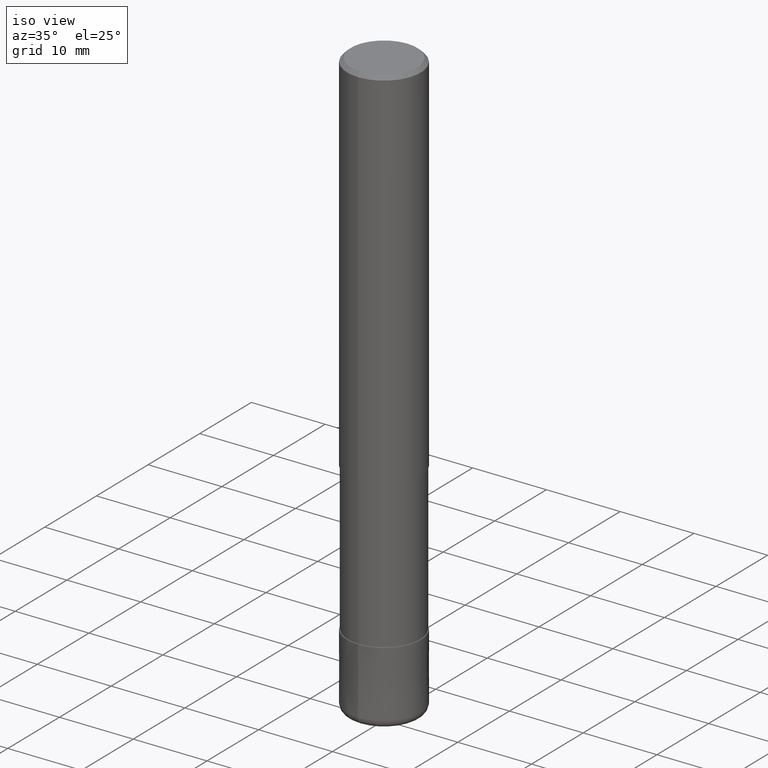
[diagram: clean part render]
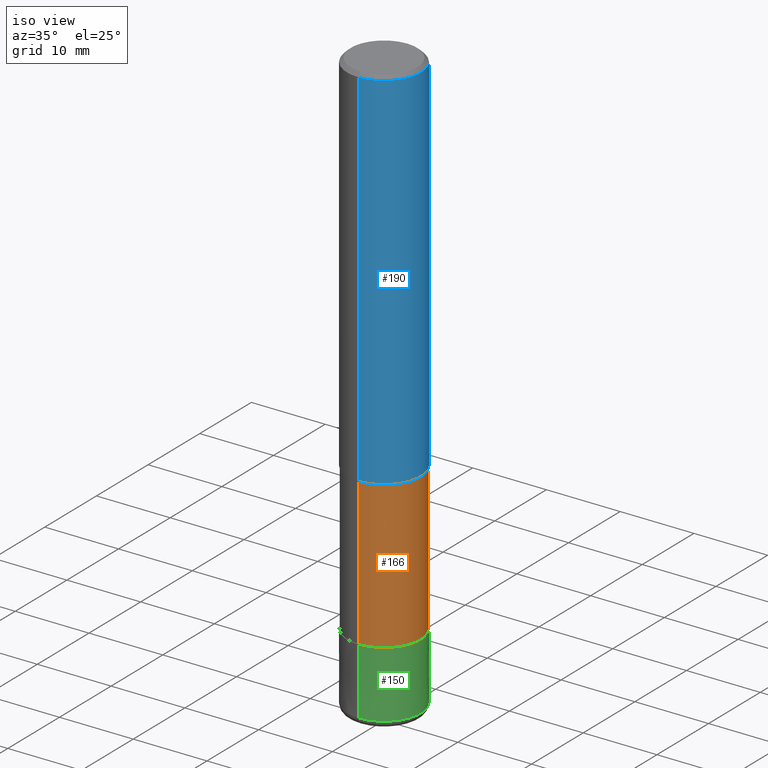
[diagram: same view with three faces highlighted in distinct colors, each labeled with its STEP entity id]
A machine part, iso view with three faces highlighted in distinct colors.
Their STEP definitions:

[orange] entity #166 — the highlighted cylindrical surface (partial cylindrical patch) has radius 4.91 mm, axis along (-0, -0, 1).
#96=EDGE_CURVE('',#136,#180,#233,.T.);
#128=EDGE_CURVE('',#136,#178,#268,.T.);
#130=EDGE_CURVE('',#180,#202,#270,.T.);
#136=VERTEX_POINT('',#276);
#160=EDGE_CURVE('',#202,#178,#307,.T.);
#166=ADVANCED_FACE('',(#314),#315,.T.);
#178=VERTEX_POINT('',#328);
#180=VERTEX_POINT('',#330);
#202=VERTEX_POINT('',#355);
#233=LINE('',#379,#380);
#268=CIRCLE('',#425,4.90995);
#270=CIRCLE('',#428,4.90995);
#276=CARTESIAN_POINT('',(0.0,4.90995,-50.0));
#307=LINE('',#473,#474);
#314=FACE_OUTER_BOUND('',#481,.T.);
#315=CYLINDRICAL_SURFACE('',#482,4.90995);
#328=CARTESIAN_POINT('',(6.01275596695018E-016,-4.90995,-50.0));
#330=CARTESIAN_POINT('',(0.0,4.90995,-70.0));
#355=CARTESIAN_POINT('',(6.01275596695018E-016,-4.90995,-70.0));
#379=CARTESIAN_POINT('',(-6.01275596695018E-016,4.90995,-60.0));
#380=VECTOR('',#544,1.0);
#425=AXIS2_PLACEMENT_3D('',#588,#589,#590);
#428=AXIS2_PLACEMENT_3D('',#591,#592,#593);
#473=CARTESIAN_POINT('',(6.01275596695018E-016,-4.90995,-60.0));
#474=VECTOR('',#651,1.0);
#481=EDGE_LOOP('',(#661,#662,#663,#664));
#482=AXIS2_PLACEMENT_3D('',#665,#666,#667);
#544=DIRECTION('',(0.0,0.0,-1.0));
#588=CARTESIAN_POINT('',(0.0,0.0,-50.0));
#589=DIRECTION('',(0.0,0.0,-1.0));
#590=DIRECTION('',(0.0,1.0,0.0));
#591=CARTESIAN_POINT('',(0.0,0.0,-70.0));
#592=DIRECTION('',(0.0,0.0,-1.0));
#593=DIRECTION('',(0.0,1.0,0.0));
#651=DIRECTION('',(-0.0,-0.0,1.0));
#661=ORIENTED_EDGE('',*,*,#96,.F.);
#662=ORIENTED_EDGE('',*,*,#128,.T.);
#663=ORIENTED_EDGE('',*,*,#160,.F.);
#664=ORIENTED_EDGE('',*,*,#130,.F.);
#665=CARTESIAN_POINT('',(0.0,0.0,-60.0));
#666=DIRECTION('',(-0.0,-0.0,1.0));
#667=DIRECTION('',(0.0,1.0,0.0));

[blue] entity #190 — the highlighted cylindrical surface (partial cylindrical patch) has radius 5 mm, axis along (-0, -0, 1).
#102=EDGE_CURVE('',#158,#208,#239,.T.);
#158=VERTEX_POINT('',#305);
#164=VERTEX_POINT('',#312);
#168=EDGE_CURVE('',#198,#164,#317,.T.);
#172=EDGE_CURVE('',#208,#198,#322,.T.);
#190=ADVANCED_FACE('',(#341),#342,.T.);
#192=EDGE_CURVE('',#158,#164,#344,.T.);
#198=VERTEX_POINT('',#350);
#208=VERTEX_POINT('',#361);
#239=LINE('',#387,#388);
#305=CARTESIAN_POINT('',(0.0,5.0,-0.5));
#312=CARTESIAN_POINT('',(6.12303176911189E-016,-5.0,-0.5));
#317=LINE('',#485,#486);
#322=CIRCLE('',#492,5.0);
#341=FACE_OUTER_BOUND('',#512,.T.);
#342=CYLINDRICAL_SURFACE('',#513,5.0);
#344=CIRCLE('',#516,5.0);
#350=CARTESIAN_POINT('',(6.12303176911189E-016,-5.0,-50.0));
#361=CARTESIAN_POINT('',(0.0,5.0,-50.0));
#387=CARTESIAN_POINT('',(-6.12303176911189E-016,5.0,-25.25));
#388=VECTOR('',#549,1.0);
#485=CARTESIAN_POINT('',(6.12303176911189E-016,-5.0,-25.25));
#486=VECTOR('',#668,1.0);
#492=AXIS2_PLACEMENT_3D('',#675,#676,#677);
#512=EDGE_LOOP('',(#688,#689,#690,#691));
#513=AXIS2_PLACEMENT_3D('',#692,#693,#694);
#516=AXIS2_PLACEMENT_3D('',#695,#696,#697);
#549=DIRECTION('',(0.0,0.0,-1.0));
#668=DIRECTION('',(-0.0,-0.0,1.0));
#675=CARTESIAN_POINT('',(0.0,0.0,-50.0));
#676=DIRECTION('',(0.0,0.0,-1.0));
#677=DIRECTION('',(0.0,1.0,0.0));
#688=ORIENTED_EDGE('',*,*,#102,.F.);
#689=ORIENTED_EDGE('',*,*,#192,.T.);
#690=ORIENTED_EDGE('',*,*,#168,.F.);
#691=ORIENTED_EDGE('',*,*,#172,.F.);
#692=CARTESIAN_POINT('',(0.0,0.0,-25.25));
#693=DIRECTION('',(-0.0,-0.0,1.0));
#694=DIRECTION('',(0.0,1.0,0.0));
#695=CARTESIAN_POINT('',(0.0,0.0,-0.5));
#696=DIRECTION('',(0.0,0.0,-1.0));
#697=DIRECTION('',(0.0,1.0,0.0));

[green] entity #150 — the highlighted conical surface has half-angle 0.001 deg.
#110=EDGE_CURVE('',#188,#184,#248,.T.);
#126=EDGE_CURVE('',#186,#188,#266,.T.);
#134=EDGE_CURVE('',#174,#186,#274,.T.);
#150=ADVANCED_FACE('',(#293),#294,.T.);
#174=VERTEX_POINT('',#324);
#184=VERTEX_POINT('',#335);
#186=VERTEX_POINT('',#337);
#188=VERTEX_POINT('',#339);
#196=EDGE_CURVE('',#174,#184,#348,.T.);
#248=LINE('',#399,#400);
#266=CIRCLE('',#422,5.0);
#274=LINE('',#434,#435);
#293=FACE_OUTER_BOUND('',#457,.T.);
#294=CONICAL_SURFACE('',#458,4.99995,1.1111111110628E-005);
#324=CARTESIAN_POINT('',(0.0,4.9999,-70.0));
#335=CARTESIAN_POINT('',(6.1229093084765E-016,-4.9999,-70.0));
#337=CARTESIAN_POINT('',(0.0,5.0,-79.0));
#339=CARTESIAN_POINT('',(6.12303176911189E-016,-5.0,-79.0));
#348=CIRCLE('',#522,4.9999);
#399=CARTESIAN_POINT('',(6.12297053879419E-016,-4.99995,-74.5));
#400=VECTOR('',#561,1.0);
#422=AXIS2_PLACEMENT_3D('',#585,#586,#587);
#434=CARTESIAN_POINT('',(-6.12297053879419E-016,4.99995,-74.5));
#435=VECTOR('',#597,1.0);
#457=EDGE_LOOP('',(#627,#628,#629,#630));
#458=AXIS2_PLACEMENT_3D('',#631,#632,#633);
#522=AXIS2_PLACEMENT_3D('',#701,#702,#703);
#561=DIRECTION('',(-1.36067372638214E-021,1.11111111103993E-005,0.999999999938272));
#585=CARTESIAN_POINT('',(0.0,0.0,-79.0));
#586=DIRECTION('',(0.0,0.0,-1.0));
#587=DIRECTION('',(0.0,1.0,0.0));
#597=DIRECTION('',(-1.36067372638214E-021,1.11111111103993E-005,-0.999999999938272));
#627=ORIENTED_EDGE('',*,*,#134,.F.);
#628=ORIENTED_EDGE('',*,*,#196,.T.);
#629=ORIENTED_EDGE('',*,*,#110,.F.);
#630=ORIENTED_EDGE('',*,*,#126,.F.);
#631=CARTESIAN_POINT('',(0.0,0.0,-74.5));
#632=DIRECTION('',(0.0,-0.0,-1.0));
#633=DIRECTION('',(0.0,1.0,0.0));
#701=CARTESIAN_POINT('',(0.0,0.0,-70.0));
#702=DIRECTION('',(0.0,0.0,-1.0));
#703=DIRECTION('',(0.0,1.0,0.0));